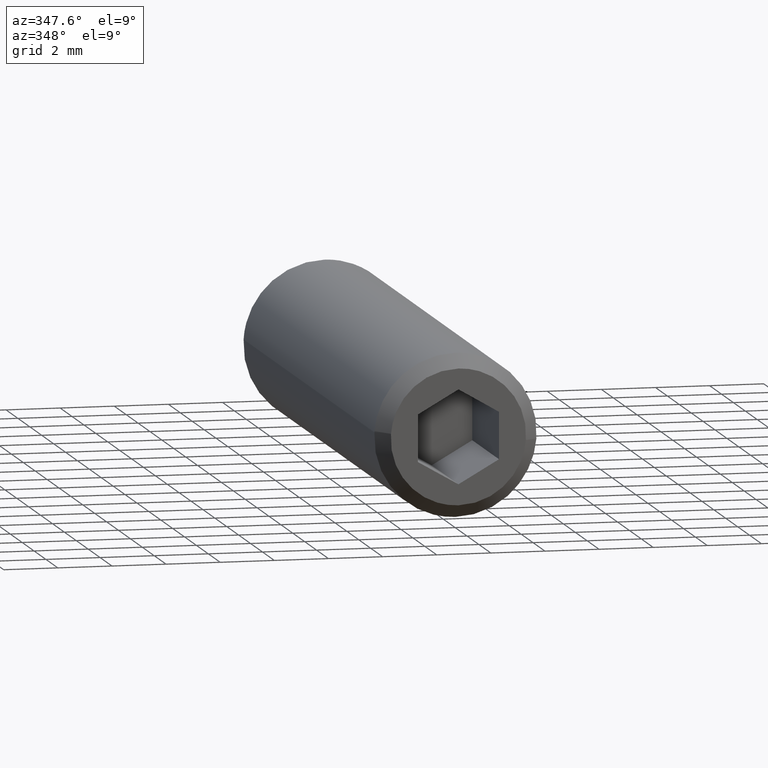
[diagram: clean part render]
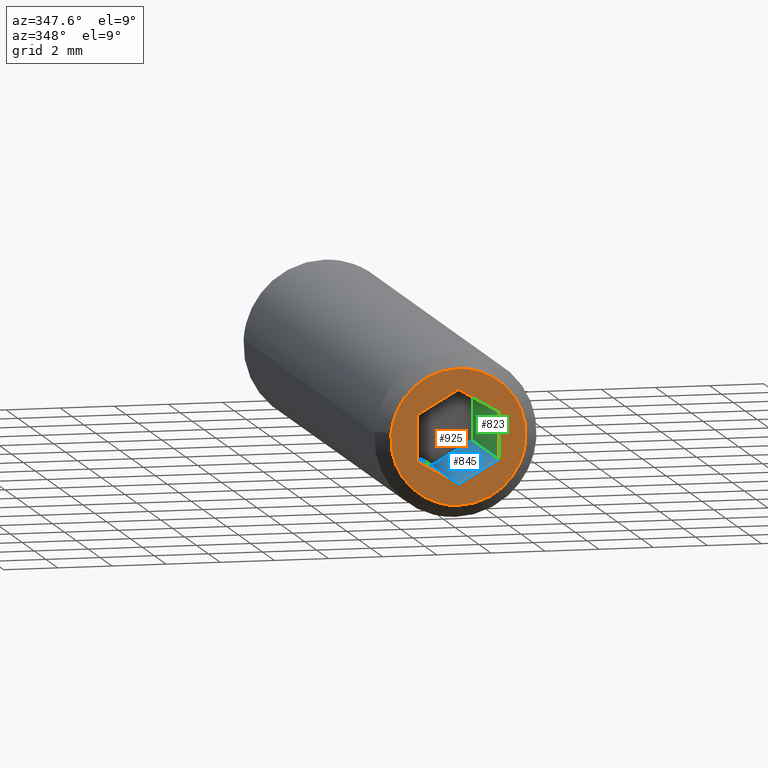
[diagram: same view with three faces highlighted in distinct colors, each labeled with its STEP entity id]
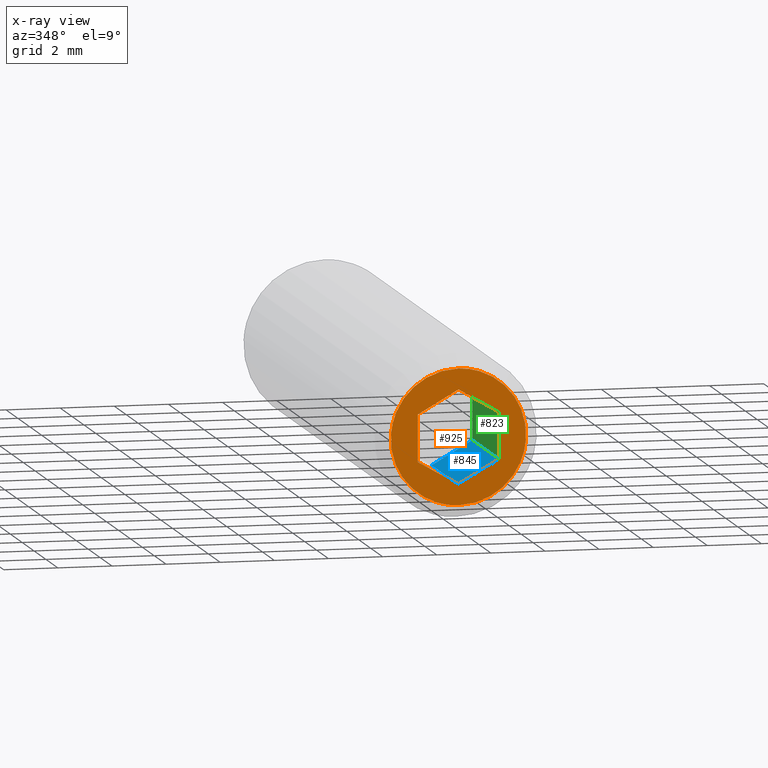
[diagram: x-ray of the same camera — body ghosted, the three highlighted faces saturated]
A machine part, auxiliary view with three faces highlighted in distinct colors.
The next image is the same camera in x-ray (body ghosted, the three faces saturated) — at least one of them is partly hidden behind the body in this view.
Their STEP definitions:

[orange] entity #925 — the highlighted face is a freeform B-spline surface patch.
#265=CARTESIAN_POINT('',(2.492293334333169,-24.549999999999120,-0.196147739326269));
#266=VERTEX_POINT('',#265);
#272=CARTESIAN_POINT('',(0.0,-24.550000000000001,-2.500000000000000));
#273=VERTEX_POINT('',#272);
#274=CARTESIAN_POINT('',(0.0,-24.550000000000001,-2.500000000000000));
#275=CARTESIAN_POINT('',(2.310976229133265,-24.549999999999994,-2.500000000000000));
#276=CARTESIAN_POINT('',(2.492293334333169,-24.549999999999123,-0.196147739326268));
#284=(BOUNDED_CURVE()B_SPLINE_CURVE(2,(#274,#275,#276),.UNSPECIFIED.,.F.,.U.)B_SPLINE_CURVE_WITH_KNOTS((3,3),(0.0,0.236331300631861),.UNSPECIFIED.)CURVE()GEOMETRIC_REPRESENTATION_ITEM()RATIONAL_B_SPLINE_CURVE((1.0,0.723120658606258,0.969723356169924))REPRESENTATION_ITEM(''));
#285=EDGE_CURVE('',#273,#266,#284,.T.);
#287=CARTESIAN_POINT('',(-2.492293334333169,-24.549999999999130,0.196147739326268));
#288=VERTEX_POINT('',#287);
#289=CARTESIAN_POINT('',(-2.492293334333169,-24.549999999999134,0.196147739326268));
#290=CARTESIAN_POINT('',(-2.500000000000000,-24.549999999999997,0.098225267525791));
#291=CARTESIAN_POINT('',(-2.500000000000000,-24.550000000000001,-1.683834E-016));
#292=CARTESIAN_POINT('',(-2.500000000000000,-24.549999999999997,-2.500000000000000));
#293=CARTESIAN_POINT('',(0.0,-24.550000000000001,-2.500000000000000));
#301=(BOUNDED_CURVE()B_SPLINE_CURVE(2,(#289,#290,#291,#292,#293),.UNSPECIFIED.,.F.,.U.)B_SPLINE_CURVE_WITH_KNOTS((3,2,3),(0.736331300631861,0.750000000000000,1.0),.UNSPECIFIED.)CURVE()GEOMETRIC_REPRESENTATION_ITEM()RATIONAL_B_SPLINE_CURVE((0.969723356169925,0.983986122580289,1.0,0.707106781186548,1.0))REPRESENTATION_ITEM(''));
#302=EDGE_CURVE('',#288,#273,#301,.T.);
#408=CARTESIAN_POINT('',(0.0,-24.550000000000001,2.500000000000000));
#409=VERTEX_POINT('',#408);
#410=CARTESIAN_POINT('',(0.0,-24.550000000000001,2.500000000000000));
#411=CARTESIAN_POINT('',(-2.310976229133256,-24.550000000000001,2.500000000000000));
#412=CARTESIAN_POINT('',(-2.492293334333169,-24.549999999999127,0.196147739326268));
#420=(BOUNDED_CURVE()B_SPLINE_CURVE(2,(#410,#411,#412),.UNSPECIFIED.,.F.,.U.)B_SPLINE_CURVE_WITH_KNOTS((3,3),(0.500000000000000,0.736331300631860),.UNSPECIFIED.)CURVE()GEOMETRIC_REPRESENTATION_ITEM()RATIONAL_B_SPLINE_CURVE((1.0,0.723120658606259,0.969723356169923))REPRESENTATION_ITEM(''));
#421=EDGE_CURVE('',#409,#288,#420,.T.);
#423=CARTESIAN_POINT('',(2.492293334333170,-24.549999999999120,-0.196147739326269));
#424=CARTESIAN_POINT('',(2.500000000000000,-24.550000000000001,-0.098225267525792));
#425=CARTESIAN_POINT('',(2.500000000000000,-24.550000000000001,-1.683834E-016));
#426=CARTESIAN_POINT('',(2.500000000000000,-24.549999999999997,2.500000000000000));
#427=CARTESIAN_POINT('',(0.0,-24.550000000000001,2.500000000000000));
#435=(BOUNDED_CURVE()B_SPLINE_CURVE(2,(#423,#424,#425,#426,#427),.UNSPECIFIED.,.F.,.U.)B_SPLINE_CURVE_WITH_KNOTS((3,2,3),(0.236331300631861,0.250000000000000,0.500000000000000),.UNSPECIFIED.)CURVE()GEOMETRIC_REPRESENTATION_ITEM()RATIONAL_B_SPLINE_CURVE((0.969723356169924,0.983986122580289,1.0,0.707106781186548,1.0))REPRESENTATION_ITEM(''));
#436=EDGE_CURVE('',#266,#409,#435,.T.);
#779=CARTESIAN_POINT('',(1.500000000000000,-24.550000000000001,0.866025000000000));
#780=VERTEX_POINT('',#779);
#781=CARTESIAN_POINT('',(0.0,-24.550000000000001,1.732051000000000));
#782=VERTEX_POINT('',#781);
#783=CARTESIAN_POINT('',(1.500000000000000,-24.550000000000001,0.866025000000000));
#784=CARTESIAN_POINT('',(0.0,-24.550000000000001,1.732051000000000));
#785=QUASI_UNIFORM_CURVE('',1,(#783,#784),.UNSPECIFIED.,.F.,.U.);
#786=EDGE_CURVE('',#780,#782,#785,.T.);
#807=CARTESIAN_POINT('',(1.500000000000000,-24.550000000000001,-0.866025000000000));
#808=VERTEX_POINT('',#807);
#809=CARTESIAN_POINT('',(1.500000000000000,-24.550000000000001,-0.866025000000000));
#810=CARTESIAN_POINT('',(1.500000000000000,-24.550000000000001,0.866025000000000));
#811=QUASI_UNIFORM_CURVE('',1,(#809,#810),.UNSPECIFIED.,.F.,.U.);
#812=EDGE_CURVE('',#808,#780,#811,.T.);
#829=CARTESIAN_POINT('',(0.0,-24.550000000000001,-1.732051000000000));
#830=VERTEX_POINT('',#829);
#831=CARTESIAN_POINT('',(0.0,-24.550000000000001,-1.732051000000000));
#832=CARTESIAN_POINT('',(1.500000000000000,-24.550000000000001,-0.866025000000000));
#833=QUASI_UNIFORM_CURVE('',1,(#831,#832),.UNSPECIFIED.,.F.,.U.);
#834=EDGE_CURVE('',#830,#808,#833,.T.);
#851=CARTESIAN_POINT('',(-1.500000000000000,-24.550000000000001,-0.866025000000000));
#852=VERTEX_POINT('',#851);
#853=CARTESIAN_POINT('',(-1.500000000000000,-24.550000000000001,-0.866025000000000));
#854=CARTESIAN_POINT('',(0.0,-24.550000000000001,-1.732051000000000));
#855=QUASI_UNIFORM_CURVE('',1,(#853,#854),.UNSPECIFIED.,.F.,.U.);
#856=EDGE_CURVE('',#852,#830,#855,.T.);
#873=CARTESIAN_POINT('',(-1.500000000000000,-24.550000000000001,0.866025000000000));
#874=VERTEX_POINT('',#873);
#875=CARTESIAN_POINT('',(-1.500000000000000,-24.550000000000001,0.866025000000000));
#876=CARTESIAN_POINT('',(-1.500000000000000,-24.550000000000001,-0.866025000000000));
#877=QUASI_UNIFORM_CURVE('',1,(#875,#876),.UNSPECIFIED.,.F.,.U.);
#878=EDGE_CURVE('',#874,#852,#877,.T.);
#895=CARTESIAN_POINT('',(0.0,-24.550000000000001,1.732051000000000));
#896=CARTESIAN_POINT('',(-1.500000000000000,-24.550000000000001,0.866025000000000));
#897=QUASI_UNIFORM_CURVE('',1,(#895,#896),.UNSPECIFIED.,.F.,.U.);
#898=EDGE_CURVE('',#782,#874,#897,.T.);
#906=CARTESIAN_POINT('',(-2.748986881817102,-24.550000000000001,-2.749749990309030));
#907=CARTESIAN_POINT('',(-2.748986881817102,-24.550000000000001,2.749750124419481));
#908=CARTESIAN_POINT('',(2.748987015927552,-24.550000000000001,-2.749749990309030));
#909=CARTESIAN_POINT('',(2.748987015927552,-24.550000000000001,2.749750124419481));
#910=B_SPLINE_SURFACE_WITH_KNOTS('',1,1,((#906,#908),(#907,#909)),.UNSPECIFIED.,.F.,.F.,.U.,(2,2),(2,2),(0.0,5.499500114728511),(0.0,5.497973897744654),.UNSPECIFIED.);
#911=ORIENTED_EDGE('',*,*,#285,.T.);
#912=ORIENTED_EDGE('',*,*,#436,.T.);
#913=ORIENTED_EDGE('',*,*,#421,.T.);
#914=ORIENTED_EDGE('',*,*,#302,.T.);
#915=EDGE_LOOP('',(#911,#912,#913,#914));
#916=FACE_OUTER_BOUND('',#915,.T.);
#917=ORIENTED_EDGE('',*,*,#878,.F.);
#918=ORIENTED_EDGE('',*,*,#898,.F.);
#919=ORIENTED_EDGE('',*,*,#786,.F.);
#920=ORIENTED_EDGE('',*,*,#812,.F.);
#921=ORIENTED_EDGE('',*,*,#834,.F.);
#922=ORIENTED_EDGE('',*,*,#856,.F.);
#923=EDGE_LOOP('',(#917,#918,#919,#920,#921,#922));
#924=FACE_BOUND('',#923,.T.);
#925=ADVANCED_FACE('',(#916,#924),#910,.F.);

[blue] entity #845 — the highlighted face is a freeform B-spline surface patch.
#745=CARTESIAN_POINT('',(0.0,-20.050000000000001,-1.732051000000000));
#746=VERTEX_POINT('',#745);
#752=CARTESIAN_POINT('',(1.500000000000000,-20.050000000000001,-0.866025000000000));
#753=VERTEX_POINT('',#752);
#754=CARTESIAN_POINT('',(0.0,-20.050000000000001,-1.732051000000000));
#755=CARTESIAN_POINT('',(1.500000000000000,-20.050000000000001,-0.866025000000000));
#756=QUASI_UNIFORM_CURVE('',1,(#754,#755),.UNSPECIFIED.,.F.,.U.);
#757=EDGE_CURVE('',#746,#753,#756,.T.);
#807=CARTESIAN_POINT('',(1.500000000000000,-24.550000000000001,-0.866025000000000));
#808=VERTEX_POINT('',#807);
#816=CARTESIAN_POINT('',(1.500000000000000,-20.050000000000001,-0.866025000000000));
#817=CARTESIAN_POINT('',(1.500000000000000,-24.550000000000001,-0.866025000000000));
#818=QUASI_UNIFORM_CURVE('',1,(#816,#817),.UNSPECIFIED.,.F.,.U.);
#819=EDGE_CURVE('',#753,#808,#818,.T.);
#824=CARTESIAN_POINT('',(1.574925011173640,-24.774774220819619,-0.822766994848901));
#825=CARTESIAN_POINT('',(-0.074925037995726,-24.774774220819619,-1.775309020636858));
#826=CARTESIAN_POINT('',(1.574925011173640,-19.825224250321241,-0.822766994848901));
#827=CARTESIAN_POINT('',(-0.074925037995726,-19.825224250321241,-1.775309020636858));
#828=B_SPLINE_SURFACE_WITH_KNOTS('',1,1,((#824,#826),(#825,#827)),.UNSPECIFIED.,.F.,.F.,.U.,(2,2),(2,2),(0.0,1.905083067909740),(0.0,4.949549970498385),.UNSPECIFIED.);
#829=CARTESIAN_POINT('',(0.0,-24.550000000000001,-1.732051000000000));
#830=VERTEX_POINT('',#829);
#831=CARTESIAN_POINT('',(0.0,-24.550000000000001,-1.732051000000000));
#832=CARTESIAN_POINT('',(1.500000000000000,-24.550000000000001,-0.866025000000000));
#833=QUASI_UNIFORM_CURVE('',1,(#831,#832),.UNSPECIFIED.,.F.,.U.);
#834=EDGE_CURVE('',#830,#808,#833,.T.);
#835=ORIENTED_EDGE('',*,*,#834,.T.);
#836=ORIENTED_EDGE('',*,*,#819,.F.);
#837=ORIENTED_EDGE('',*,*,#757,.F.);
#838=CARTESIAN_POINT('',(0.0,-20.050000000000001,-1.732051000000000));
#839=CARTESIAN_POINT('',(0.0,-24.550000000000001,-1.732051000000000));
#840=QUASI_UNIFORM_CURVE('',1,(#838,#839),.UNSPECIFIED.,.F.,.U.);
#841=EDGE_CURVE('',#746,#830,#840,.T.);
#842=ORIENTED_EDGE('',*,*,#841,.T.);
#843=EDGE_LOOP('',(#835,#836,#837,#842));
#844=FACE_OUTER_BOUND('',#843,.T.);
#845=ADVANCED_FACE('',(#844),#828,.F.);

[green] entity #823 — the highlighted face is a freeform B-spline surface patch.
#752=CARTESIAN_POINT('',(1.500000000000000,-20.050000000000001,-0.866025000000000));
#753=VERTEX_POINT('',#752);
#759=CARTESIAN_POINT('',(1.500000000000000,-20.050000000000001,0.866025000000000));
#760=VERTEX_POINT('',#759);
#761=CARTESIAN_POINT('',(1.500000000000000,-20.050000000000001,-0.866025000000000));
#762=CARTESIAN_POINT('',(1.500000000000000,-20.050000000000001,0.866025000000000));
#763=QUASI_UNIFORM_CURVE('',1,(#761,#762),.UNSPECIFIED.,.F.,.U.);
#764=EDGE_CURVE('',#753,#760,#763,.T.);
#779=CARTESIAN_POINT('',(1.500000000000000,-24.550000000000001,0.866025000000000));
#780=VERTEX_POINT('',#779);
#794=CARTESIAN_POINT('',(1.500000000000000,-20.050000000000001,0.866025000000000));
#795=CARTESIAN_POINT('',(1.500000000000000,-24.550000000000001,0.866025000000000));
#796=QUASI_UNIFORM_CURVE('',1,(#794,#795),.UNSPECIFIED.,.F.,.U.);
#797=EDGE_CURVE('',#760,#780,#796,.T.);
#802=CARTESIAN_POINT('',(1.500000000000000,-24.774774220819619,0.952540855436359));
#803=CARTESIAN_POINT('',(1.500000000000000,-24.774774220819619,-0.952540808979158));
#804=CARTESIAN_POINT('',(1.500000000000000,-19.825224250321241,0.952540855436359));
#805=CARTESIAN_POINT('',(1.500000000000000,-19.825224250321241,-0.952540808979158));
#806=B_SPLINE_SURFACE_WITH_KNOTS('',1,1,((#802,#804),(#803,#805)),.UNSPECIFIED.,.F.,.F.,.U.,(2,2),(2,2),(0.0,1.905081664415518),(0.0,4.949549970498385),.UNSPECIFIED.);
#807=CARTESIAN_POINT('',(1.500000000000000,-24.550000000000001,-0.866025000000000));
#808=VERTEX_POINT('',#807);
#809=CARTESIAN_POINT('',(1.500000000000000,-24.550000000000001,-0.866025000000000));
#810=CARTESIAN_POINT('',(1.500000000000000,-24.550000000000001,0.866025000000000));
#811=QUASI_UNIFORM_CURVE('',1,(#809,#810),.UNSPECIFIED.,.F.,.U.);
#812=EDGE_CURVE('',#808,#780,#811,.T.);
#813=ORIENTED_EDGE('',*,*,#812,.T.);
#814=ORIENTED_EDGE('',*,*,#797,.F.);
#815=ORIENTED_EDGE('',*,*,#764,.F.);
#816=CARTESIAN_POINT('',(1.500000000000000,-20.050000000000001,-0.866025000000000));
#817=CARTESIAN_POINT('',(1.500000000000000,-24.550000000000001,-0.866025000000000));
#818=QUASI_UNIFORM_CURVE('',1,(#816,#817),.UNSPECIFIED.,.F.,.U.);
#819=EDGE_CURVE('',#753,#808,#818,.T.);
#820=ORIENTED_EDGE('',*,*,#819,.T.);
#821=EDGE_LOOP('',(#813,#814,#815,#820));
#822=FACE_OUTER_BOUND('',#821,.T.);
#823=ADVANCED_FACE('',(#822),#806,.F.);